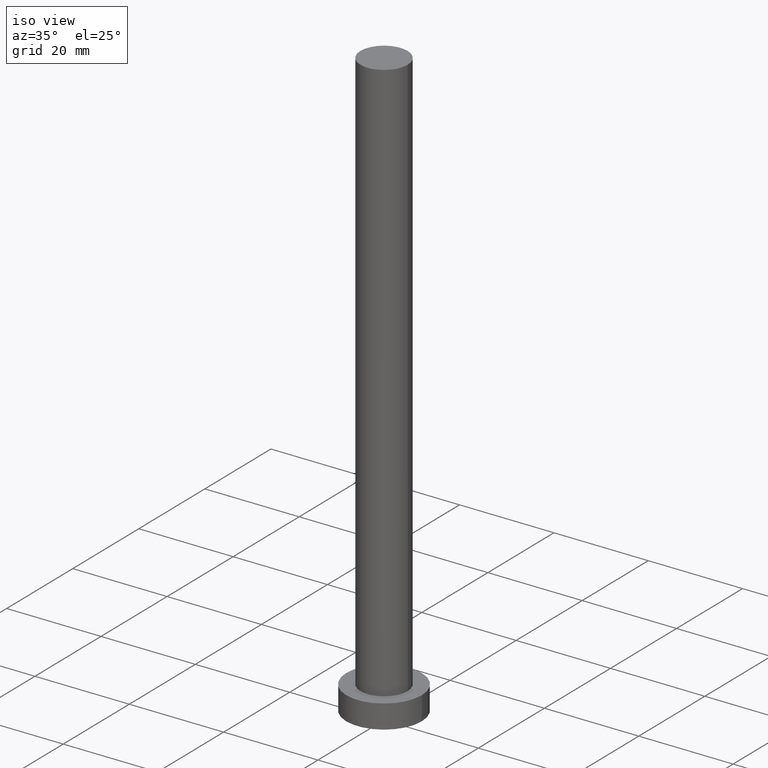
[diagram: clean part render]
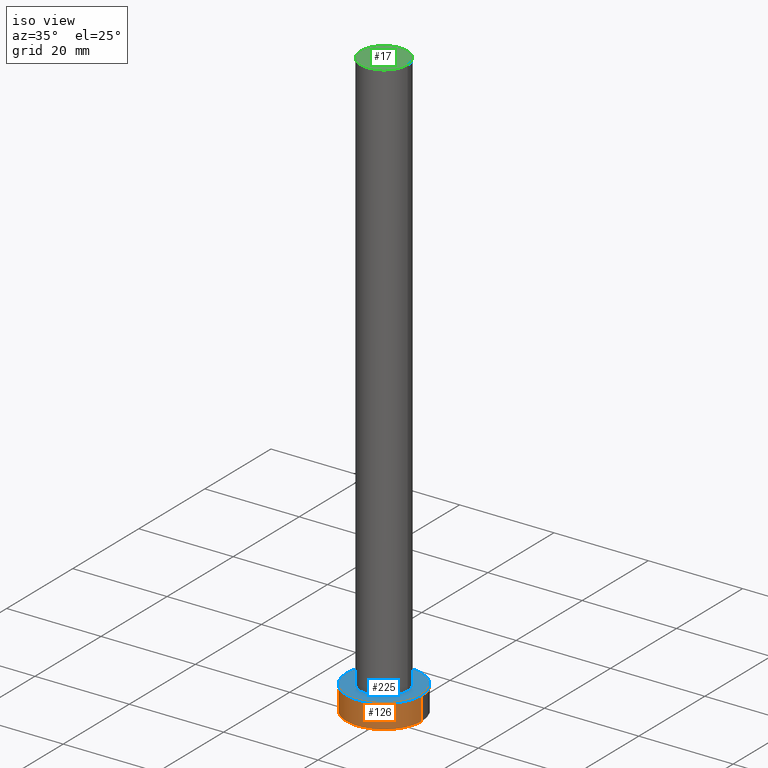
[diagram: same view with three faces highlighted in distinct colors, each labeled with its STEP entity id]
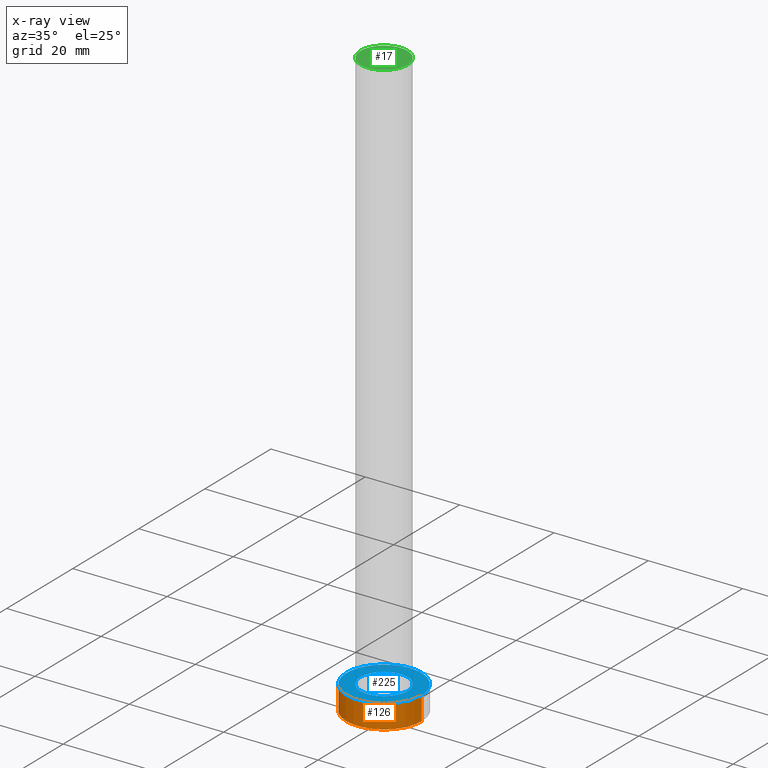
[diagram: x-ray of the same camera — body ghosted, the three highlighted faces saturated]
A machine part, iso view with three faces highlighted in distinct colors.
The next image is the same camera in x-ray (body ghosted, the three faces saturated) — at least one of them is partly hidden behind the body in this view.
Their STEP definitions:

[orange] entity #126 — the highlighted cylindrical surface (partial cylindrical patch) has radius 8 mm, axis along (-0, -0, -1).
#18 = LINE ( 'NONE', #137, #127 ) ;
#26 = CARTESIAN_POINT ( 'NONE',  ( 0.000000000000000000, 0.000000000000000000, 5.000000000000000000 ) ) ;
#29 = DIRECTION ( 'NONE',  ( 1.000000000000000000, 0.000000000000000000, 0.000000000000000000 ) ) ;
#32 = CARTESIAN_POINT ( 'NONE',  ( -8.000000000000000000, 0.000000000000000000, 0.000000000000000000 ) ) ;
#36 = LINE ( 'NONE', #173, #95 ) ;
#39 = EDGE_LOOP ( 'NONE', ( #87, #166, #82, #57 ) ) ;
#41 = VERTEX_POINT ( 'NONE', #61 ) ;
#50 = DIRECTION ( 'NONE',  ( -0.000000000000000000, -0.000000000000000000, -1.000000000000000000 ) ) ;
#54 = CARTESIAN_POINT ( 'NONE',  ( 8.000000000000000000, 9.797174393178825657E-16, 5.000000000000000000 ) ) ;
#57 = ORIENTED_EDGE ( 'NONE', *, *, #101, .T. ) ;
#61 = CARTESIAN_POINT ( 'NONE',  ( 8.000000000000000000, 9.797174393178825657E-16, 0.000000000000000000 ) ) ;
#63 = DIRECTION ( 'NONE',  ( -0.000000000000000000, -0.000000000000000000, -1.000000000000000000 ) ) ;
#66 = CARTESIAN_POINT ( 'NONE',  ( 0.000000000000000000, 0.000000000000000000, 0.000000000000000000 ) ) ;
#82 = ORIENTED_EDGE ( 'NONE', *, *, #214, .T. ) ;
#87 = ORIENTED_EDGE ( 'NONE', *, *, #145, .F. ) ;
#88 = AXIS2_PLACEMENT_3D ( 'NONE', #128, #204, #29 ) ;
#89 = DIRECTION ( 'NONE',  ( -0.000000000000000000, -0.000000000000000000, -1.000000000000000000 ) ) ;
#95 = VECTOR ( 'NONE', #89, 1000.000000000000000 ) ;
#101 = EDGE_CURVE ( 'NONE', #205, #41, #199, .T. ) ;
#104 = CYLINDRICAL_SURFACE ( 'NONE', #163, 8.000000000000000000 ) ;
#126 = ADVANCED_FACE ( 'NONE', ( #165 ), #104, .T. ) ;
#127 = VECTOR ( 'NONE', #50, 1000.000000000000000 ) ;
#128 = CARTESIAN_POINT ( 'NONE',  ( 0.000000000000000000, 0.000000000000000000, 5.000000000000000000 ) ) ;
#137 = CARTESIAN_POINT ( 'NONE',  ( 8.000000000000000000, 9.797174393178825657E-16, 5.000000000000000000 ) ) ;
#142 = EDGE_CURVE ( 'NONE', #224, #192, #211, .T. ) ;
#145 = EDGE_CURVE ( 'NONE', #192, #41, #18, .T. ) ;
#163 = AXIS2_PLACEMENT_3D ( 'NONE', #26, #63, #228 ) ;
#165 = FACE_OUTER_BOUND ( 'NONE', #39, .T. ) ;
#166 = ORIENTED_EDGE ( 'NONE', *, *, #142, .F. ) ;
#173 = CARTESIAN_POINT ( 'NONE',  ( -8.000000000000000000, 0.000000000000000000, 5.000000000000000000 ) ) ;
#174 = CARTESIAN_POINT ( 'NONE',  ( -8.000000000000000000, 0.000000000000000000, 5.000000000000000000 ) ) ;
#192 = VERTEX_POINT ( 'NONE', #54 ) ;
#199 = CIRCLE ( 'NONE', #216, 8.000000000000000000 ) ;
#204 = DIRECTION ( 'NONE',  ( 0.000000000000000000, 0.000000000000000000, 1.000000000000000000 ) ) ;
#205 = VERTEX_POINT ( 'NONE', #32 ) ;
#211 = CIRCLE ( 'NONE', #88, 8.000000000000000000 ) ;
#214 = EDGE_CURVE ( 'NONE', #224, #205, #36, .T. ) ;
#216 = AXIS2_PLACEMENT_3D ( 'NONE', #66, #246, #248 ) ;
#224 = VERTEX_POINT ( 'NONE', #174 ) ;
#228 = DIRECTION ( 'NONE',  ( -1.000000000000000000, 0.000000000000000000, 0.000000000000000000 ) ) ;
#246 = DIRECTION ( 'NONE',  ( 0.000000000000000000, 0.000000000000000000, 1.000000000000000000 ) ) ;
#248 = DIRECTION ( 'NONE',  ( 1.000000000000000000, 0.000000000000000000, 0.000000000000000000 ) ) ;

[blue] entity #225 — the highlighted planar face has unit normal (0, 0, 1).
#7 = ORIENTED_EDGE ( 'NONE', *, *, #109, .F. ) ;
#15 = DIRECTION ( 'NONE',  ( 1.000000000000000000, 0.000000000000000000, 0.000000000000000000 ) ) ;
#20 = EDGE_CURVE ( 'NONE', #24, #77, #35, .T. ) ;
#22 = DIRECTION ( 'NONE',  ( 1.000000000000000000, 0.000000000000000000, -0.000000000000000000 ) ) ;
#24 = VERTEX_POINT ( 'NONE', #227 ) ;
#25 = ORIENTED_EDGE ( 'NONE', *, *, #97, .T. ) ;
#29 = DIRECTION ( 'NONE',  ( 1.000000000000000000, 0.000000000000000000, 0.000000000000000000 ) ) ;
#35 = CIRCLE ( 'NONE', #249, 5.000000000000000888 ) ;
#54 = CARTESIAN_POINT ( 'NONE',  ( 8.000000000000000000, 9.797174393178825657E-16, 5.000000000000000000 ) ) ;
#67 = PLANE ( 'NONE',  #106 ) ;
#77 = VERTEX_POINT ( 'NONE', #146 ) ;
#84 = CIRCLE ( 'NONE', #154, 5.000000000000000888 ) ;
#86 = DIRECTION ( 'NONE',  ( 0.000000000000000000, 0.000000000000000000, 1.000000000000000000 ) ) ;
#88 = AXIS2_PLACEMENT_3D ( 'NONE', #128, #204, #29 ) ;
#97 = EDGE_CURVE ( 'NONE', #192, #224, #183, .T. ) ;
#99 = EDGE_LOOP ( 'NONE', ( #240, #25 ) ) ;
#106 = AXIS2_PLACEMENT_3D ( 'NONE', #194, #111, #22 ) ;
#109 = EDGE_CURVE ( 'NONE', #77, #24, #84, .T. ) ;
#111 = DIRECTION ( 'NONE',  ( 0.000000000000000000, 0.000000000000000000, 1.000000000000000000 ) ) ;
#117 = EDGE_LOOP ( 'NONE', ( #7, #130 ) ) ;
#119 = AXIS2_PLACEMENT_3D ( 'NONE', #171, #86, #252 ) ;
#128 = CARTESIAN_POINT ( 'NONE',  ( 0.000000000000000000, 0.000000000000000000, 5.000000000000000000 ) ) ;
#130 = ORIENTED_EDGE ( 'NONE', *, *, #20, .F. ) ;
#132 = FACE_OUTER_BOUND ( 'NONE', #99, .T. ) ;
#142 = EDGE_CURVE ( 'NONE', #224, #192, #211, .T. ) ;
#146 = CARTESIAN_POINT ( 'NONE',  ( -5.000000000000000888, 0.000000000000000000, 5.000000000000000000 ) ) ;
#147 = DIRECTION ( 'NONE',  ( 0.000000000000000000, 0.000000000000000000, 1.000000000000000000 ) ) ;
#149 = DIRECTION ( 'NONE',  ( 1.000000000000000000, 0.000000000000000000, 0.000000000000000000 ) ) ;
#154 = AXIS2_PLACEMENT_3D ( 'NONE', #188, #147, #149 ) ;
#164 = CARTESIAN_POINT ( 'NONE',  ( 0.000000000000000000, 0.000000000000000000, 5.000000000000000000 ) ) ;
#171 = CARTESIAN_POINT ( 'NONE',  ( 0.000000000000000000, 0.000000000000000000, 5.000000000000000000 ) ) ;
#174 = CARTESIAN_POINT ( 'NONE',  ( -8.000000000000000000, 0.000000000000000000, 5.000000000000000000 ) ) ;
#183 = CIRCLE ( 'NONE', #119, 8.000000000000000000 ) ;
#188 = CARTESIAN_POINT ( 'NONE',  ( 0.000000000000000000, 0.000000000000000000, 5.000000000000000000 ) ) ;
#189 = DIRECTION ( 'NONE',  ( 0.000000000000000000, 0.000000000000000000, 1.000000000000000000 ) ) ;
#192 = VERTEX_POINT ( 'NONE', #54 ) ;
#194 = CARTESIAN_POINT ( 'NONE',  ( 0.000000000000000000, 0.000000000000000000, 5.000000000000000000 ) ) ;
#204 = DIRECTION ( 'NONE',  ( 0.000000000000000000, 0.000000000000000000, 1.000000000000000000 ) ) ;
#211 = CIRCLE ( 'NONE', #88, 8.000000000000000000 ) ;
#224 = VERTEX_POINT ( 'NONE', #174 ) ;
#225 = ADVANCED_FACE ( 'NONE', ( #233, #132 ), #67, .T. ) ;
#227 = CARTESIAN_POINT ( 'NONE',  ( 5.000000000000000888, 6.123233995736767268E-16, 5.000000000000000000 ) ) ;
#233 = FACE_BOUND ( 'NONE', #117, .T. ) ;
#240 = ORIENTED_EDGE ( 'NONE', *, *, #142, .T. ) ;
#249 = AXIS2_PLACEMENT_3D ( 'NONE', #164, #189, #15 ) ;
#252 = DIRECTION ( 'NONE',  ( 1.000000000000000000, 0.000000000000000000, 0.000000000000000000 ) ) ;

[green] entity #17 — the highlighted planar face has unit normal (0, 0, 1).
#9 = VERTEX_POINT ( 'NONE', #42 ) ;
#17 = ADVANCED_FACE ( 'NONE', ( #203 ), #102, .T. ) ;
#28 = DIRECTION ( 'NONE',  ( 0.000000000000000000, 0.000000000000000000, 1.000000000000000000 ) ) ;
#31 = CARTESIAN_POINT ( 'NONE',  ( 0.000000000000000000, 0.000000000000000000, 125.0000000000000000 ) ) ;
#42 = CARTESIAN_POINT ( 'NONE',  ( -5.000000000000000888, 0.000000000000000000, 125.0000000000000000 ) ) ;
#44 = ORIENTED_EDGE ( 'NONE', *, *, #229, .T. ) ;
#51 = CARTESIAN_POINT ( 'NONE',  ( 0.000000000000000000, 0.000000000000000000, 125.0000000000000000 ) ) ;
#53 = AXIS2_PLACEMENT_3D ( 'NONE', #31, #28, #107 ) ;
#92 = EDGE_CURVE ( 'NONE', #160, #9, #134, .T. ) ;
#93 = DIRECTION ( 'NONE',  ( 0.000000000000000000, 0.000000000000000000, 1.000000000000000000 ) ) ;
#102 = PLANE ( 'NONE',  #175 ) ;
#107 = DIRECTION ( 'NONE',  ( 1.000000000000000000, 0.000000000000000000, 0.000000000000000000 ) ) ;
#118 = ORIENTED_EDGE ( 'NONE', *, *, #92, .T. ) ;
#129 = DIRECTION ( 'NONE',  ( 0.000000000000000000, 0.000000000000000000, 1.000000000000000000 ) ) ;
#134 = CIRCLE ( 'NONE', #53, 5.000000000000000888 ) ;
#143 = EDGE_LOOP ( 'NONE', ( #44, #118 ) ) ;
#148 = DIRECTION ( 'NONE',  ( 1.000000000000000000, 0.000000000000000000, -0.000000000000000000 ) ) ;
#153 = CARTESIAN_POINT ( 'NONE',  ( 5.000000000000000888, 6.123233995736767268E-16, 125.0000000000000000 ) ) ;
#155 = DIRECTION ( 'NONE',  ( 1.000000000000000000, 0.000000000000000000, 0.000000000000000000 ) ) ;
#160 = VERTEX_POINT ( 'NONE', #153 ) ;
#168 = AXIS2_PLACEMENT_3D ( 'NONE', #51, #93, #155 ) ;
#175 = AXIS2_PLACEMENT_3D ( 'NONE', #190, #129, #148 ) ;
#190 = CARTESIAN_POINT ( 'NONE',  ( 0.000000000000000000, 0.000000000000000000, 125.0000000000000000 ) ) ;
#203 = FACE_OUTER_BOUND ( 'NONE', #143, .T. ) ;
#229 = EDGE_CURVE ( 'NONE', #9, #160, #245, .T. ) ;
#245 = CIRCLE ( 'NONE', #168, 5.000000000000000888 ) ;